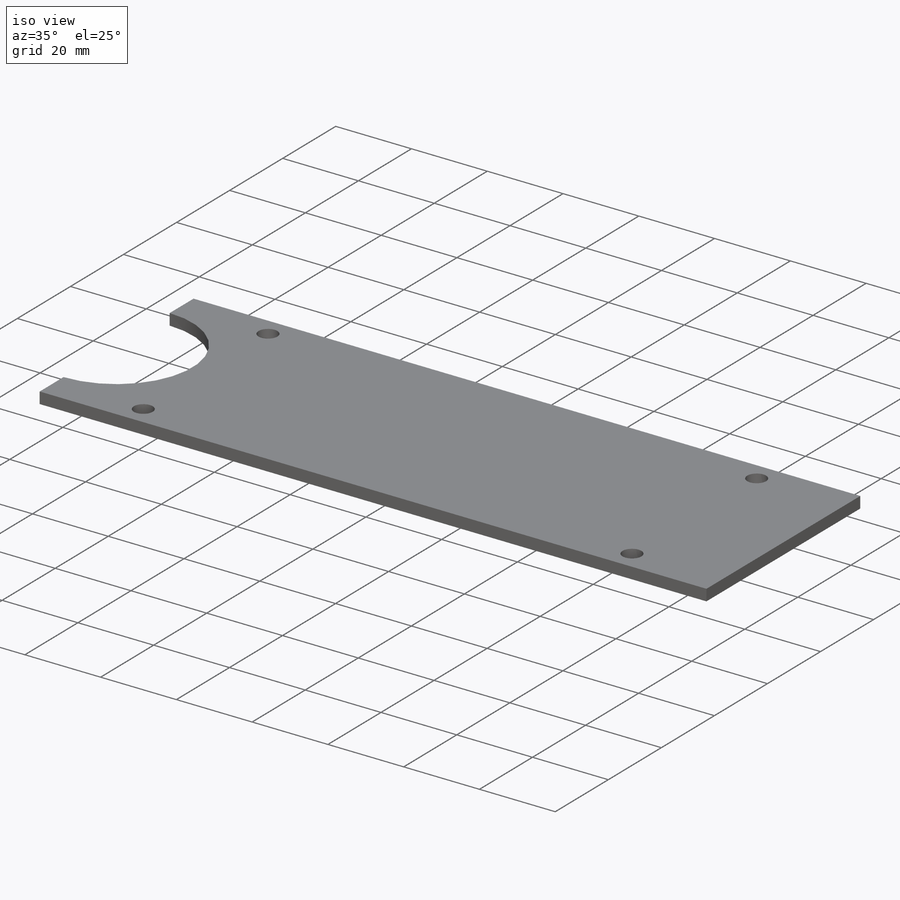
[diagram: iso view]
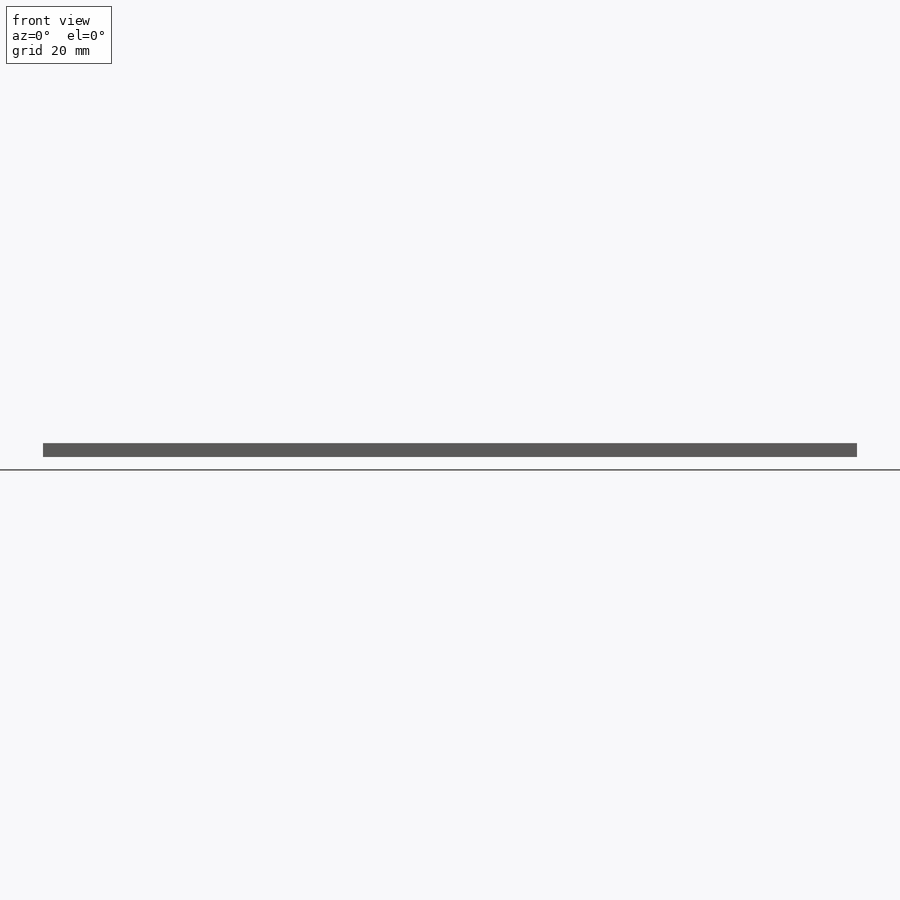
[diagram: front view]
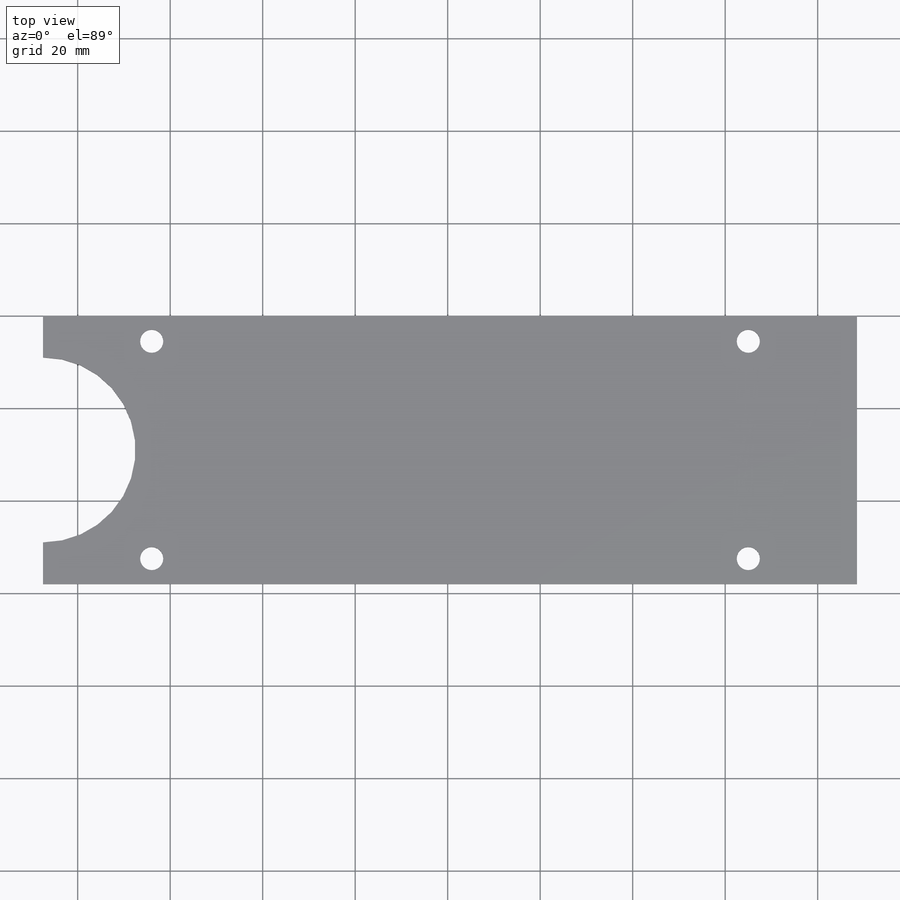
[diagram: top view]
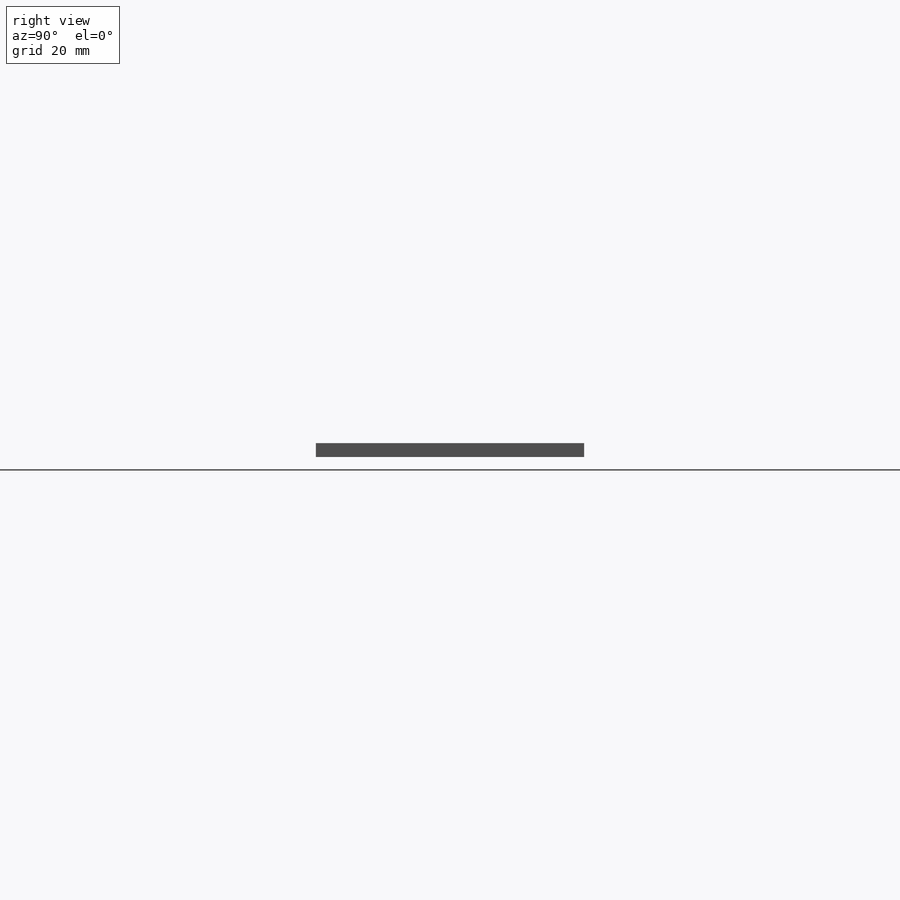
[diagram: right view]
SOLIDWORKS PART (.sldprt)
format: sldprt  version: not decoded by parser v0  size: 435,200 bytes
history: native  units: mm
features: sketch x8, extrude x2, cut_extrude x2, sheet_metal_op x2, material x1 + 1 further entry (+12 scaffold rows collapsed; 2 parser-record rows omitted)
feature tree (30):
  scaffold x12  (default folders/planes/origin — collapsed)
  material  "Material <not specified>"
  sketch  "Sketch1"  dims[c1.D1=58.0mm c1.D2=121.0mm c2.D1=58.0mm c2.D2=121.0mm]
  extrude  "Boss-Extrude1"  Depth=3mm
  sketch  "Sketch2"  dims[c1.D1=3.0mm c1.D2=~8.971459mm c2.D1=58.0mm c2.D2=3.0mm c3.D1=58.0mm c3.D2=3.0mm c3.D3=58.0mm]
  extrude  "Boss-Extrude2"  Depth=29mm
  sketch  "Sketch3"  dims[c1.D3=5.0mm c1.D4=20.0mm c1.D1=5.5mm c1.D2=8.5mm c2.D3=~0.389254mm c2.D4=32.0mm c2.D5=40.0mm]
  cut_extrude  "Cut-Extrude1"  Depth=29mm
  sketch  "Sketch4"  dims[c1.D3=5.0mm c1.D1=5.5mm c1.D2=8.5mm c2.D3=32.0mm]
  cut_extrude  "Cut-Extrude2"  Depth=29mm SharpBend2=0
  parser-record x2  (decoder bookkeeping rows leaked as tree rows — omitted from the tree; the rows remain in map.json)
  sketch  "Bend-Lines1"
  sketch  "Bounding-Box1"
  sheet_metal_op  "Sheet-Metal(5)"
  "Flat-Pattern(5)"
  sketch  "Bend-Lines2"
  sketch  "Bounding-Box2"
  sheet_metal_op  "Flatten-<SharpBend2>1"
decode coverage: 8 of 14 modeling features carry decoded parameters; 1 rows unclassified (native names shown)
note: ~ marks probable driven/reference dimensions
note: suppression state not decoded; provenance and decode notes live in map.json
